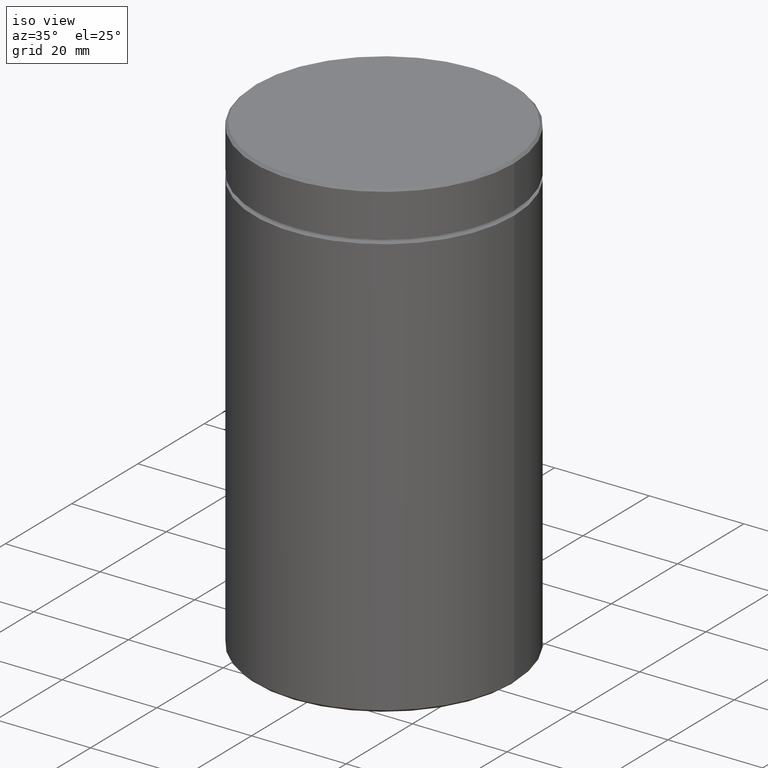
[diagram: clean part render]
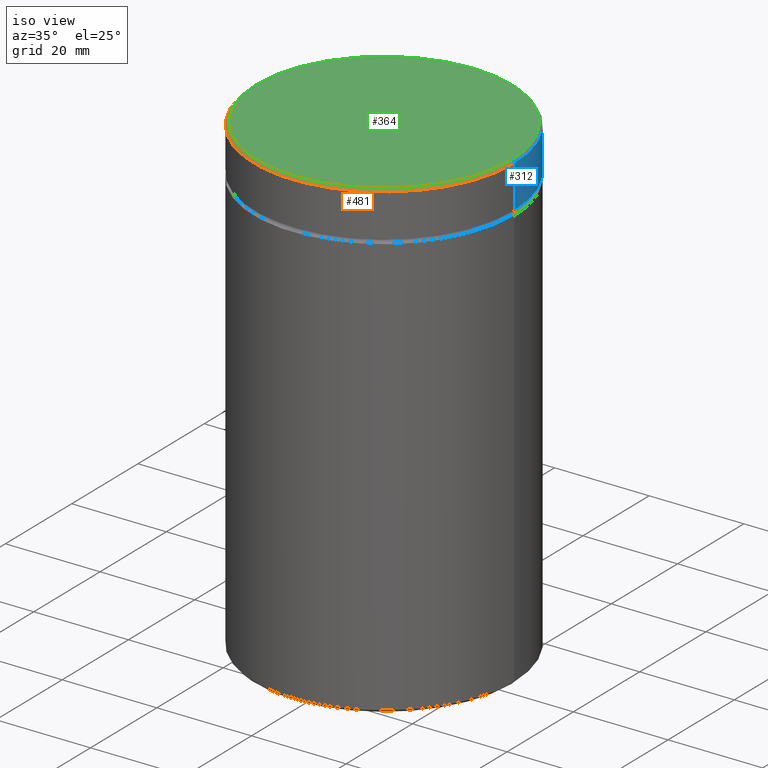
[diagram: same view with three faces highlighted in distinct colors, each labeled with its STEP entity id]
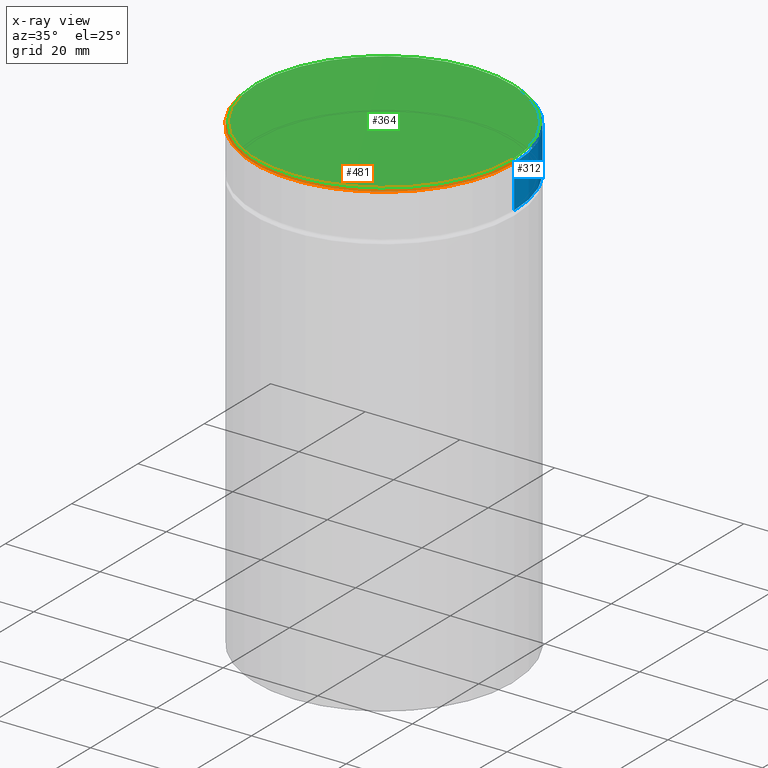
[diagram: x-ray of the same camera — body ghosted, the three highlighted faces saturated]
A machine part, iso view with three faces highlighted in distinct colors.
The next image is the same camera in x-ray (body ghosted, the three faces saturated) — at least one of them is partly hidden behind the body in this view.
Their STEP definitions:

[orange] entity #481 — the highlighted conical surface has half-angle 45 deg.
#19 = ORIENTED_EDGE ( 'NONE', *, *, #475, .F. ) ;
#20 = EDGE_CURVE ( 'NONE', #549, #146, #377, .T. ) ;
#80 = VECTOR ( 'NONE', #436, 1000.000000000000000 ) ;
#83 = LINE ( 'NONE', #262, #80 ) ;
#85 = DIRECTION ( 'NONE',  ( -1.000000000000000000, 0.000000000000000000, 0.000000000000000000 ) ) ;
#94 = CARTESIAN_POINT ( 'NONE',  ( 0.000000000000000000, 0.000000000000000000, -0.5000000000000143219 ) ) ;
#131 = CARTESIAN_POINT ( 'NONE',  ( 0.000000000000000000, 0.000000000000000000, 0.000000000000000000 ) ) ;
#146 = VERTEX_POINT ( 'NONE', #217 ) ;
#159 = AXIS2_PLACEMENT_3D ( 'NONE', #131, #313, #482 ) ;
#173 = DIRECTION ( 'NONE',  ( 0.000000000000000000, 0.000000000000000000, -1.000000000000000000 ) ) ;
#198 = CARTESIAN_POINT ( 'NONE',  ( 26.99999999999997868, 3.306546357697850972E-15, 0.000000000000000000 ) ) ;
#217 = CARTESIAN_POINT ( 'NONE',  ( 27.50000000000000000, 0.000000000000000000, -0.5000000000000143219 ) ) ;
#225 = ORIENTED_EDGE ( 'NONE', *, *, #518, .F. ) ;
#248 = ORIENTED_EDGE ( 'NONE', *, *, #501, .T. ) ;
#259 = ORIENTED_EDGE ( 'NONE', *, *, #20, .F. ) ;
#262 = CARTESIAN_POINT ( 'NONE',  ( -26.99999999999997868, 0.000000000000000000, 0.000000000000000000 ) ) ;
#269 = DIRECTION ( 'NONE',  ( 1.000000000000000000, 0.000000000000000000, 0.000000000000000000 ) ) ;
#273 = CARTESIAN_POINT ( 'NONE',  ( 0.000000000000000000, 0.000000000000000000, 0.000000000000000000 ) ) ;
#279 = VERTEX_POINT ( 'NONE', #338 ) ;
#308 = CIRCLE ( 'NONE', #507, 27.50000000000000000 ) ;
#313 = DIRECTION ( 'NONE',  ( -0.000000000000000000, -0.000000000000000000, 1.000000000000000000 ) ) ;
#319 = FACE_OUTER_BOUND ( 'NONE', #333, .T. ) ;
#333 = EDGE_LOOP ( 'NONE', ( #259, #225, #248, #19 ) ) ;
#338 = CARTESIAN_POINT ( 'NONE',  ( -26.99999999999997868, 0.000000000000000000, 0.000000000000000000 ) ) ;
#351 = AXIS2_PLACEMENT_3D ( 'NONE', #273, #445, #85 ) ;
#377 = LINE ( 'NONE', #198, #442 ) ;
#378 = VERTEX_POINT ( 'NONE', #509 ) ;
#436 = DIRECTION ( 'NONE',  ( -0.7071067811865524577, 0.000000000000000000, -0.7071067811865426878 ) ) ;
#442 = VECTOR ( 'NONE', #544, 1000.000000000000000 ) ;
#445 = DIRECTION ( 'NONE',  ( 0.000000000000000000, 0.000000000000000000, -1.000000000000000000 ) ) ;
#470 = CONICAL_SURFACE ( 'NONE', #351, 26.99999999999997868, 0.7853981633974552734 ) ;
#475 = EDGE_CURVE ( 'NONE', #146, #378, #308, .T. ) ;
#481 = ADVANCED_FACE ( 'NONE', ( #319 ), #470, .T. ) ;
#482 = DIRECTION ( 'NONE',  ( 1.000000000000000000, 0.000000000000000000, 0.000000000000000000 ) ) ;
#490 = CARTESIAN_POINT ( 'NONE',  ( 26.99999999999997868, 3.337162527676536337E-15, 0.000000000000000000 ) ) ;
#501 = EDGE_CURVE ( 'NONE', #279, #378, #83, .T. ) ;
#507 = AXIS2_PLACEMENT_3D ( 'NONE', #94, #173, #269 ) ;
#509 = CARTESIAN_POINT ( 'NONE',  ( -27.50000000000000000, 3.367778697655221307E-15, -0.5000000000000143219 ) ) ;
#518 = EDGE_CURVE ( 'NONE', #279, #549, #563, .T. ) ;
#544 = DIRECTION ( 'NONE',  ( 0.7071067811865524577, 8.659560562354994488E-17, -0.7071067811865426878 ) ) ;
#549 = VERTEX_POINT ( 'NONE', #490 ) ;
#563 = CIRCLE ( 'NONE', #159, 26.99999999999997868 ) ;

[blue] entity #312 — the highlighted cylindrical surface (partial cylindrical patch) has radius 27.5 mm, axis along (-0, -0, 1).
#18 = ORIENTED_EDGE ( 'NONE', *, *, #492, .T. ) ;
#33 = EDGE_CURVE ( 'NONE', #152, #488, #477, .T. ) ;
#38 = LINE ( 'NONE', #59, #427 ) ;
#41 = EDGE_LOOP ( 'NONE', ( #49, #18, #133, #78 ) ) ;
#49 = ORIENTED_EDGE ( 'NONE', *, *, #33, .T. ) ;
#54 = DIRECTION ( 'NONE',  ( -0.000000000000000000, -0.000000000000000000, 1.000000000000000000 ) ) ;
#59 = CARTESIAN_POINT ( 'NONE',  ( 27.50000000000000000, 0.000000000000000000, 0.000000000000000000 ) ) ;
#78 = ORIENTED_EDGE ( 'NONE', *, *, #533, .F. ) ;
#81 = DIRECTION ( 'NONE',  ( 1.000000000000000000, 0.000000000000000000, 0.000000000000000000 ) ) ;
#125 = DIRECTION ( 'NONE',  ( -0.000000000000000000, -0.000000000000000000, 1.000000000000000000 ) ) ;
#128 = CARTESIAN_POINT ( 'NONE',  ( 0.000000000000000000, 0.000000000000000000, -0.5000000000000143219 ) ) ;
#133 = ORIENTED_EDGE ( 'NONE', *, *, #145, .T. ) ;
#145 = EDGE_CURVE ( 'NONE', #378, #146, #197, .T. ) ;
#146 = VERTEX_POINT ( 'NONE', #217 ) ;
#152 = VERTEX_POINT ( 'NONE', #215 ) ;
#197 = CIRCLE ( 'NONE', #372, 27.50000000000000000 ) ;
#209 = CYLINDRICAL_SURFACE ( 'NONE', #562, 27.50000000000000000 ) ;
#215 = CARTESIAN_POINT ( 'NONE',  ( 27.50000000000000000, 0.000000000000000000, -9.500000000000000000 ) ) ;
#217 = CARTESIAN_POINT ( 'NONE',  ( 27.50000000000000000, 0.000000000000000000, -0.5000000000000143219 ) ) ;
#222 = VECTOR ( 'NONE', #125, 1000.000000000000000 ) ;
#242 = DIRECTION ( 'NONE',  ( -0.000000000000000000, -0.000000000000000000, 1.000000000000000000 ) ) ;
#306 = DIRECTION ( 'NONE',  ( 1.000000000000000000, 0.000000000000000000, 0.000000000000000000 ) ) ;
#312 = ADVANCED_FACE ( 'NONE', ( #348 ), #209, .T. ) ;
#348 = FACE_OUTER_BOUND ( 'NONE', #41, .T. ) ;
#352 = LINE ( 'NONE', #520, #222 ) ;
#372 = AXIS2_PLACEMENT_3D ( 'NONE', #128, #485, #81 ) ;
#378 = VERTEX_POINT ( 'NONE', #509 ) ;
#399 = AXIS2_PLACEMENT_3D ( 'NONE', #454, #54, #459 ) ;
#401 = CARTESIAN_POINT ( 'NONE',  ( -27.50000000000000000, 3.367778697655221307E-15, -9.500000000000000000 ) ) ;
#427 = VECTOR ( 'NONE', #242, 1000.000000000000000 ) ;
#454 = CARTESIAN_POINT ( 'NONE',  ( 0.000000000000000000, 0.000000000000000000, -9.500000000000000000 ) ) ;
#459 = DIRECTION ( 'NONE',  ( 1.000000000000000000, 0.000000000000000000, 0.000000000000000000 ) ) ;
#477 = CIRCLE ( 'NONE', #399, 27.50000000000000000 ) ;
#485 = DIRECTION ( 'NONE',  ( 0.000000000000000000, 0.000000000000000000, -1.000000000000000000 ) ) ;
#488 = VERTEX_POINT ( 'NONE', #401 ) ;
#492 = EDGE_CURVE ( 'NONE', #488, #378, #352, .T. ) ;
#508 = DIRECTION ( 'NONE',  ( -0.000000000000000000, -0.000000000000000000, 1.000000000000000000 ) ) ;
#509 = CARTESIAN_POINT ( 'NONE',  ( -27.50000000000000000, 3.367778697655221307E-15, -0.5000000000000143219 ) ) ;
#515 = CARTESIAN_POINT ( 'NONE',  ( 0.000000000000000000, 0.000000000000000000, 0.000000000000000000 ) ) ;
#520 = CARTESIAN_POINT ( 'NONE',  ( -27.50000000000000000, 3.367778697655221307E-15, 0.000000000000000000 ) ) ;
#533 = EDGE_CURVE ( 'NONE', #152, #146, #38, .T. ) ;
#562 = AXIS2_PLACEMENT_3D ( 'NONE', #515, #508, #306 ) ;

[green] entity #364 — the highlighted planar face has unit normal (0, -0, 1).
#6 = EDGE_LOOP ( 'NONE', ( #527, #376 ) ) ;
#76 = DIRECTION ( 'NONE',  ( 0.000000000000000000, -0.000000000000000000, 1.000000000000000000 ) ) ;
#88 = CARTESIAN_POINT ( 'NONE',  ( 0.000000000000000000, 0.000000000000000000, 0.000000000000000000 ) ) ;
#131 = CARTESIAN_POINT ( 'NONE',  ( 0.000000000000000000, 0.000000000000000000, 0.000000000000000000 ) ) ;
#159 = AXIS2_PLACEMENT_3D ( 'NONE', #131, #313, #482 ) ;
#176 = DIRECTION ( 'NONE',  ( 1.000000000000000000, 0.000000000000000000, 0.000000000000000000 ) ) ;
#256 = DIRECTION ( 'NONE',  ( 1.000000000000000000, 0.000000000000000000, 0.000000000000000000 ) ) ;
#279 = VERTEX_POINT ( 'NONE', #338 ) ;
#313 = DIRECTION ( 'NONE',  ( -0.000000000000000000, -0.000000000000000000, 1.000000000000000000 ) ) ;
#338 = CARTESIAN_POINT ( 'NONE',  ( -26.99999999999997868, 0.000000000000000000, 0.000000000000000000 ) ) ;
#364 = ADVANCED_FACE ( 'NONE', ( #557 ), #472, .T. ) ;
#365 = DIRECTION ( 'NONE',  ( -0.000000000000000000, -0.000000000000000000, 1.000000000000000000 ) ) ;
#376 = ORIENTED_EDGE ( 'NONE', *, *, #414, .T. ) ;
#411 = AXIS2_PLACEMENT_3D ( 'NONE', #88, #365, #176 ) ;
#414 = EDGE_CURVE ( 'NONE', #549, #279, #443, .T. ) ;
#443 = CIRCLE ( 'NONE', #411, 26.99999999999997868 ) ;
#467 = CARTESIAN_POINT ( 'NONE',  ( 0.000000000000000000, 0.000000000000000000, 0.000000000000000000 ) ) ;
#472 = PLANE ( 'NONE',  #523 ) ;
#482 = DIRECTION ( 'NONE',  ( 1.000000000000000000, 0.000000000000000000, 0.000000000000000000 ) ) ;
#490 = CARTESIAN_POINT ( 'NONE',  ( 26.99999999999997868, 3.337162527676536337E-15, 0.000000000000000000 ) ) ;
#518 = EDGE_CURVE ( 'NONE', #279, #549, #563, .T. ) ;
#523 = AXIS2_PLACEMENT_3D ( 'NONE', #467, #76, #256 ) ;
#527 = ORIENTED_EDGE ( 'NONE', *, *, #518, .T. ) ;
#549 = VERTEX_POINT ( 'NONE', #490 ) ;
#557 = FACE_OUTER_BOUND ( 'NONE', #6, .T. ) ;
#563 = CIRCLE ( 'NONE', #159, 26.99999999999997868 ) ;